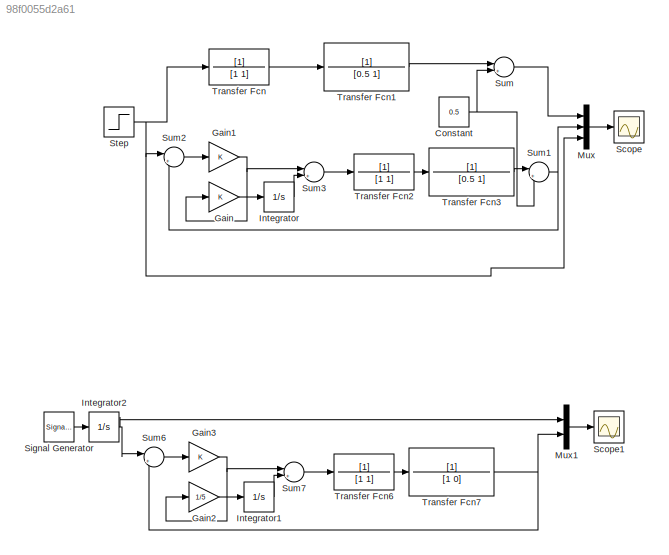
MODEL slx_98f0055d2a61
KIND model
CONFIG AbsTol = auto
CONFIG EnableMultiTasking = off
CONFIG FixedStep = auto
CONFIG MaxStep = auto
CONFIG MinStep = auto
CONFIG RelTol = 1e-3
CONFIG SampleTimeConstraint = Unconstrained
CONFIG SolverName = VariableStepAuto
CONFIG StartTime = 0.0
CONFIG StopTime = 100
BLOCK [Constant] Constant
  Value = 0.5
BLOCK [Gain] Gain
BLOCK [Gain] Gain1
BLOCK [Gain] Gain2
  Gain = 1/5
BLOCK [Gain] Gain3
BLOCK [Integrator] Integrator
BLOCK [Integrator] Integrator1
BLOCK [Integrator] Integrator2
BLOCK [Mux] Mux
  DisplayOption = bar
  Inputs = 3
BLOCK [Mux] Mux1
  DisplayOption = bar
  Inputs = 2
BLOCK [Scope] Scope
  Floating = off
  NumInputPorts = 1
  ScopeSpecificationString = Simulink.scopes.TimeScopeBlockCfg('CurrentConfiguration', extmgr.ConfigurationSet(extmgr.Configuration('Core','General UI',true),extmgr.Configuration('Core','Source UI',true),extmgr.Configuration('Sources','WiredSimulink',true),extmgr.Configuration('Visuals','Time Domain',true,'SerializedDisplays',{struct('MinYLimReal','-0.21075','MaxYLimReal','1.69008','YLabelReal','','MinYLimMag','0.00000','MaxY...<+1456ch>
BLOCK [Scope] Scope1
  Floating = off
  NumInputPorts = 1
  ScopeSpecificationString = Simulink.scopes.TimeScopeBlockCfg('CurrentConfiguration', extmgr.ConfigurationSet(extmgr.Configuration('Core','General UI',true),extmgr.Configuration('Core','Source UI',true),extmgr.Configuration('Sources','WiredSimulink',true,'DataLoggingVariableName','ScopeData1'),extmgr.Configuration('Visuals','Time Domain',true,'SerializedDisplays',{struct('MinYLimReal','-3.74443','MaxYLimReal','0.58724','YLab...<+1507ch>
BLOCK [SignalGenerator] Signal Generator
  Amplitude = 0.2
  Frequency = 0.2
  Units = rad/sec
  WaveForm = square
BLOCK [Step] Step
  SampleTime = 0
  Time = 5
BLOCK [Sum] Sum
  Inputs = |++
BLOCK [Sum] Sum1
  Inputs = |++
BLOCK [Sum] Sum2
  Inputs = |+-
BLOCK [Sum] Sum3
  Inputs = |++
BLOCK [Sum] Sum6
  Inputs = |+-
BLOCK [Sum] Sum7
  Inputs = |++
BLOCK [TransferFcn] Transfer Fcn
  Denominator = [1 1]
BLOCK [TransferFcn] Transfer Fcn1
  Denominator = [0.5 1]
BLOCK [TransferFcn] Transfer Fcn2
  Denominator = [1 1]
BLOCK [TransferFcn] Transfer Fcn3
  Denominator = [0.5 1]
BLOCK [TransferFcn] Transfer Fcn6
  Denominator = [1 1]
BLOCK [TransferFcn] Transfer Fcn7
  Denominator = [1 0]
NET Constant:1 -> Sum1:2, Sum:2
NET Gain1:1 -> Gain:1, Sum3:1
LINE Gain2:1 -> Integrator1:1
NET Gain3:1 -> Gain2:1, Sum7:1
LINE Gain:1 -> Integrator:1
LINE Integrator1:1 -> Sum7:2
NET Integrator2:1 -> Mux1:1, Sum6:1
LINE Integrator:1 -> Sum3:2
LINE Mux1:1 -> Scope1:1
LINE Mux:1 -> Scope:1
LINE Signal Generator:1 -> Integrator2:1
NET Step:1 -> Mux:3, Sum2:1, Transfer Fcn:1
NET Sum1:1 -> Mux:2, Sum2:2
LINE Sum2:1 -> Gain1:1
LINE Sum3:1 -> Transfer Fcn2:1
LINE Sum6:1 -> Gain3:1
LINE Sum7:1 -> Transfer Fcn6:1
LINE Sum:1 -> Mux:1
LINE Transfer Fcn1:1 -> Sum:1
LINE Transfer Fcn2:1 -> Transfer Fcn3:1
LINE Transfer Fcn3:1 -> Sum1:1
LINE Transfer Fcn6:1 -> Transfer Fcn7:1
NET Transfer Fcn7:1 -> Mux1:2, Sum6:2
LINE Transfer Fcn:1 -> Transfer Fcn1:1
note: NET lines group one-source signal fan-out (src -> all destinations, sorted); 1:1 wires keep LINE
